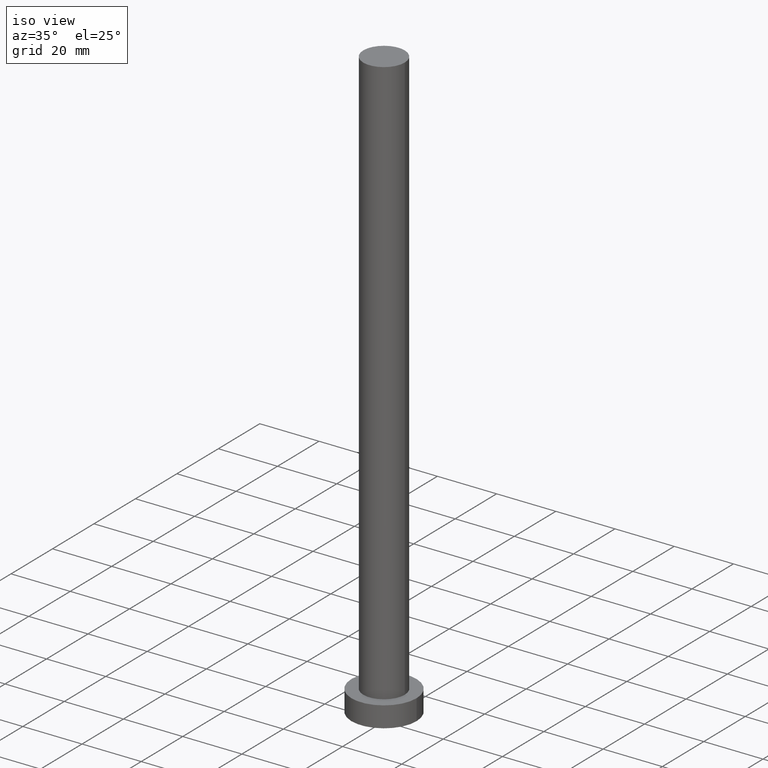
[diagram: clean part render]
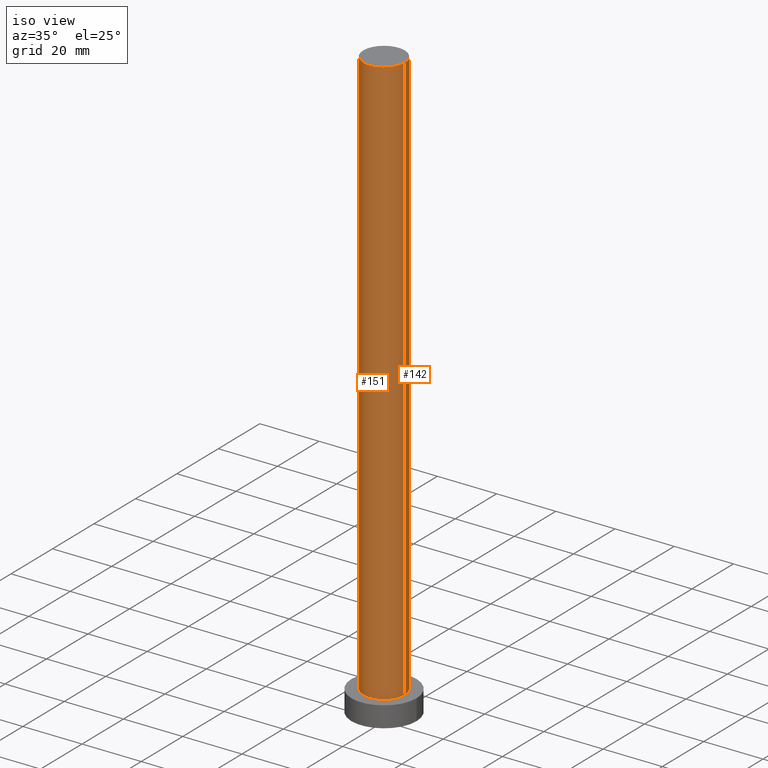
[diagram: same view with one multi-face feature highlighted, each face labeled with its STEP entity id]
A machine part, iso view. The highlighted faces form ONE feature: a constant-radius fillet chain: 2 tangent blend faces with common blend radius 7 mm. The faces share edges in the B-rep.
Their STEP definitions:
[1] entity #142 (Cylinder):
#2 = DIRECTION ( 'NONE',  ( -0.000000000000000000, -0.000000000000000000, -1.000000000000000000 ) ) ;
#11 = DIRECTION ( 'NONE',  ( 1.000000000000000000, 0.000000000000000000, 0.000000000000000000 ) ) ;
#13 = CARTESIAN_POINT ( 'NONE',  ( 0.000000000000000000, 0.000000000000000000, 200.0000000000000000 ) ) ;
#15 = VERTEX_POINT ( 'NONE', #164 ) ;
#19 = VERTEX_POINT ( 'NONE', #246 ) ;
#22 = ORIENTED_EDGE ( 'NONE', *, *, #39, .F. ) ;
#31 = ORIENTED_EDGE ( 'NONE', *, *, #193, .T. ) ;
#36 = ORIENTED_EDGE ( 'NONE', *, *, #47, .F. ) ;
#39 = EDGE_CURVE ( 'NONE', #15, #219, #114, .T. ) ;
#42 = DIRECTION ( 'NONE',  ( 0.000000000000000000, 0.000000000000000000, 1.000000000000000000 ) ) ;
#44 = DIRECTION ( 'NONE',  ( -0.000000000000000000, -0.000000000000000000, -1.000000000000000000 ) ) ;
#45 = CARTESIAN_POINT ( 'NONE',  ( -7.000000000000000888, 0.000000000000000000, 200.0000000000000000 ) ) ;
#47 = EDGE_CURVE ( 'NONE', #219, #19, #85, .T. ) ;
#56 = AXIS2_PLACEMENT_3D ( 'NONE', #75, #2, #76 ) ;
#64 = CARTESIAN_POINT ( 'NONE',  ( 7.000000000000000888, 8.572527594031474176E-16, 200.0000000000000000 ) ) ;
#71 = CIRCLE ( 'NONE', #120, 7.000000000000000888 ) ;
#75 = CARTESIAN_POINT ( 'NONE',  ( 0.000000000000000000, 0.000000000000000000, 200.0000000000000000 ) ) ;
#76 = DIRECTION ( 'NONE',  ( -1.000000000000000000, 0.000000000000000000, 0.000000000000000000 ) ) ;
#79 = EDGE_LOOP ( 'NONE', ( #22, #31, #242, #36 ) ) ;
#85 = LINE ( 'NONE', #170, #154 ) ;
#88 = FACE_OUTER_BOUND ( 'NONE', #79, .T. ) ;
#105 = VERTEX_POINT ( 'NONE', #107 ) ;
#107 = CARTESIAN_POINT ( 'NONE',  ( 7.000000000000000888, 8.572527594031474176E-16, 7.000000000000000000 ) ) ;
#114 = CIRCLE ( 'NONE', #181, 7.000000000000000888 ) ;
#120 = AXIS2_PLACEMENT_3D ( 'NONE', #159, #42, #11 ) ;
#142 = ADVANCED_FACE ( 'NONE', ( #88 ), #251, .T. ) ;
#154 = VECTOR ( 'NONE', #249, 1000.000000000000000 ) ;
#159 = CARTESIAN_POINT ( 'NONE',  ( 0.000000000000000000, 0.000000000000000000, 7.000000000000000000 ) ) ;
#164 = CARTESIAN_POINT ( 'NONE',  ( 7.000000000000000888, 8.572527594031474176E-16, 200.0000000000000000 ) ) ;
#165 = DIRECTION ( 'NONE',  ( 0.000000000000000000, 0.000000000000000000, 1.000000000000000000 ) ) ;
#168 = VECTOR ( 'NONE', #44, 1000.000000000000000 ) ;
#170 = CARTESIAN_POINT ( 'NONE',  ( -7.000000000000000888, 0.000000000000000000, 200.0000000000000000 ) ) ;
#180 = EDGE_CURVE ( 'NONE', #105, #19, #71, .T. ) ;
#181 = AXIS2_PLACEMENT_3D ( 'NONE', #13, #165, #203 ) ;
#193 = EDGE_CURVE ( 'NONE', #15, #105, #243, .T. ) ;
#203 = DIRECTION ( 'NONE',  ( 1.000000000000000000, 0.000000000000000000, 0.000000000000000000 ) ) ;
#219 = VERTEX_POINT ( 'NONE', #45 ) ;
#242 = ORIENTED_EDGE ( 'NONE', *, *, #180, .T. ) ;
#243 = LINE ( 'NONE', #64, #168 ) ;
#246 = CARTESIAN_POINT ( 'NONE',  ( -7.000000000000000888, 0.000000000000000000, 7.000000000000000000 ) ) ;
#249 = DIRECTION ( 'NONE',  ( -0.000000000000000000, -0.000000000000000000, -1.000000000000000000 ) ) ;
#251 = CYLINDRICAL_SURFACE ( 'NONE', #56, 7.000000000000000888 ) ;
[2] entity #151 (Cylinder):
#15 = VERTEX_POINT ( 'NONE', #164 ) ;
#19 = VERTEX_POINT ( 'NONE', #246 ) ;
#23 = CYLINDRICAL_SURFACE ( 'NONE', #190, 7.000000000000000888 ) ;
#26 = EDGE_CURVE ( 'NONE', #19, #105, #126, .T. ) ;
#32 = ORIENTED_EDGE ( 'NONE', *, *, #47, .T. ) ;
#44 = DIRECTION ( 'NONE',  ( -0.000000000000000000, -0.000000000000000000, -1.000000000000000000 ) ) ;
#45 = CARTESIAN_POINT ( 'NONE',  ( -7.000000000000000888, 0.000000000000000000, 200.0000000000000000 ) ) ;
#47 = EDGE_CURVE ( 'NONE', #219, #19, #85, .T. ) ;
#48 = CIRCLE ( 'NONE', #158, 7.000000000000000888 ) ;
#50 = DIRECTION ( 'NONE',  ( 1.000000000000000000, 0.000000000000000000, 0.000000000000000000 ) ) ;
#64 = CARTESIAN_POINT ( 'NONE',  ( 7.000000000000000888, 8.572527594031474176E-16, 200.0000000000000000 ) ) ;
#84 = CARTESIAN_POINT ( 'NONE',  ( 0.000000000000000000, 0.000000000000000000, 200.0000000000000000 ) ) ;
#85 = LINE ( 'NONE', #170, #154 ) ;
#101 = DIRECTION ( 'NONE',  ( 0.000000000000000000, 0.000000000000000000, 1.000000000000000000 ) ) ;
#105 = VERTEX_POINT ( 'NONE', #107 ) ;
#107 = CARTESIAN_POINT ( 'NONE',  ( 7.000000000000000888, 8.572527594031474176E-16, 7.000000000000000000 ) ) ;
#126 = CIRCLE ( 'NONE', #141, 7.000000000000000888 ) ;
#134 = FACE_OUTER_BOUND ( 'NONE', #139, .T. ) ;
#136 = ORIENTED_EDGE ( 'NONE', *, *, #26, .T. ) ;
#139 = EDGE_LOOP ( 'NONE', ( #157, #253, #32, #136 ) ) ;
#141 = AXIS2_PLACEMENT_3D ( 'NONE', #188, #101, #186 ) ;
#151 = ADVANCED_FACE ( 'NONE', ( #134 ), #23, .T. ) ;
#154 = VECTOR ( 'NONE', #249, 1000.000000000000000 ) ;
#157 = ORIENTED_EDGE ( 'NONE', *, *, #193, .F. ) ;
#158 = AXIS2_PLACEMENT_3D ( 'NONE', #84, #244, #50 ) ;
#162 = DIRECTION ( 'NONE',  ( -0.000000000000000000, -0.000000000000000000, -1.000000000000000000 ) ) ;
#164 = CARTESIAN_POINT ( 'NONE',  ( 7.000000000000000888, 8.572527594031474176E-16, 200.0000000000000000 ) ) ;
#168 = VECTOR ( 'NONE', #44, 1000.000000000000000 ) ;
#170 = CARTESIAN_POINT ( 'NONE',  ( -7.000000000000000888, 0.000000000000000000, 200.0000000000000000 ) ) ;
#179 = DIRECTION ( 'NONE',  ( -1.000000000000000000, 0.000000000000000000, 0.000000000000000000 ) ) ;
#186 = DIRECTION ( 'NONE',  ( 1.000000000000000000, 0.000000000000000000, 0.000000000000000000 ) ) ;
#188 = CARTESIAN_POINT ( 'NONE',  ( 0.000000000000000000, 0.000000000000000000, 7.000000000000000000 ) ) ;
#190 = AXIS2_PLACEMENT_3D ( 'NONE', #216, #162, #179 ) ;
#193 = EDGE_CURVE ( 'NONE', #15, #105, #243, .T. ) ;
#204 = EDGE_CURVE ( 'NONE', #219, #15, #48, .T. ) ;
#216 = CARTESIAN_POINT ( 'NONE',  ( 0.000000000000000000, 0.000000000000000000, 200.0000000000000000 ) ) ;
#219 = VERTEX_POINT ( 'NONE', #45 ) ;
#243 = LINE ( 'NONE', #64, #168 ) ;
#244 = DIRECTION ( 'NONE',  ( 0.000000000000000000, 0.000000000000000000, 1.000000000000000000 ) ) ;
#246 = CARTESIAN_POINT ( 'NONE',  ( -7.000000000000000888, 0.000000000000000000, 7.000000000000000000 ) ) ;
#249 = DIRECTION ( 'NONE',  ( -0.000000000000000000, -0.000000000000000000, -1.000000000000000000 ) ) ;
#253 = ORIENTED_EDGE ( 'NONE', *, *, #204, .F. ) ;